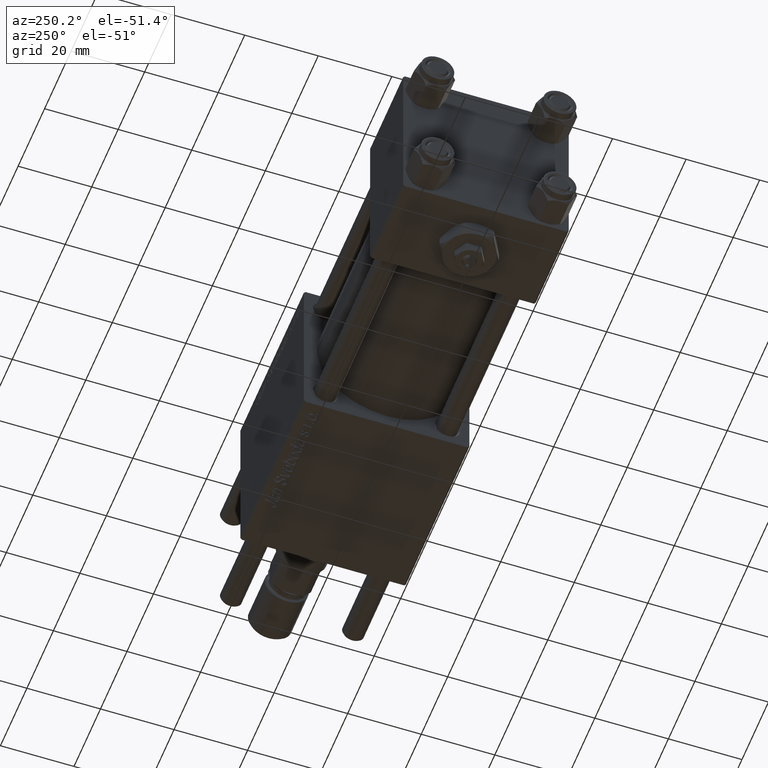
[diagram: clean part render]
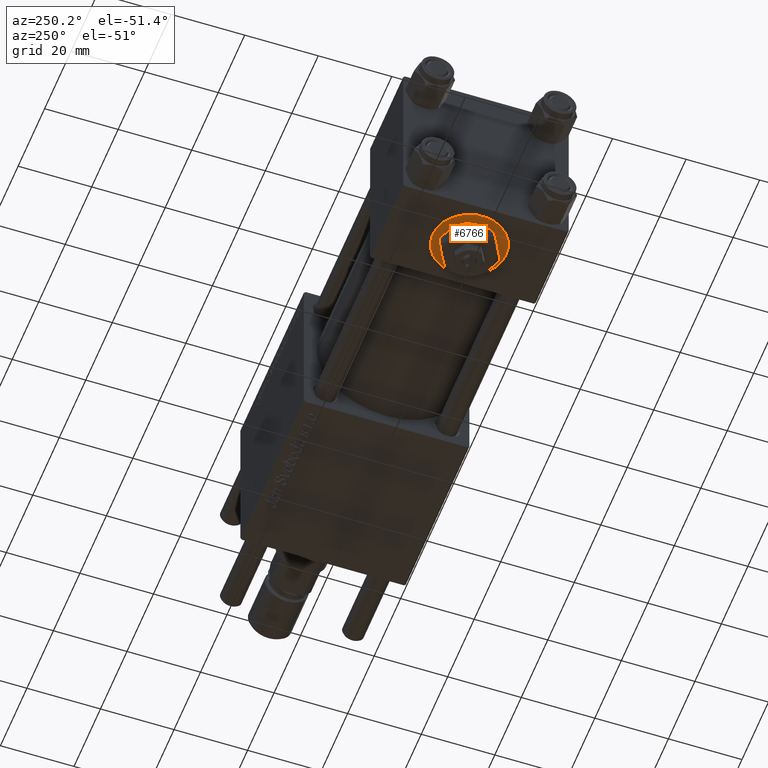
[diagram: same view with one face highlighted and labeled with its STEP entity id]
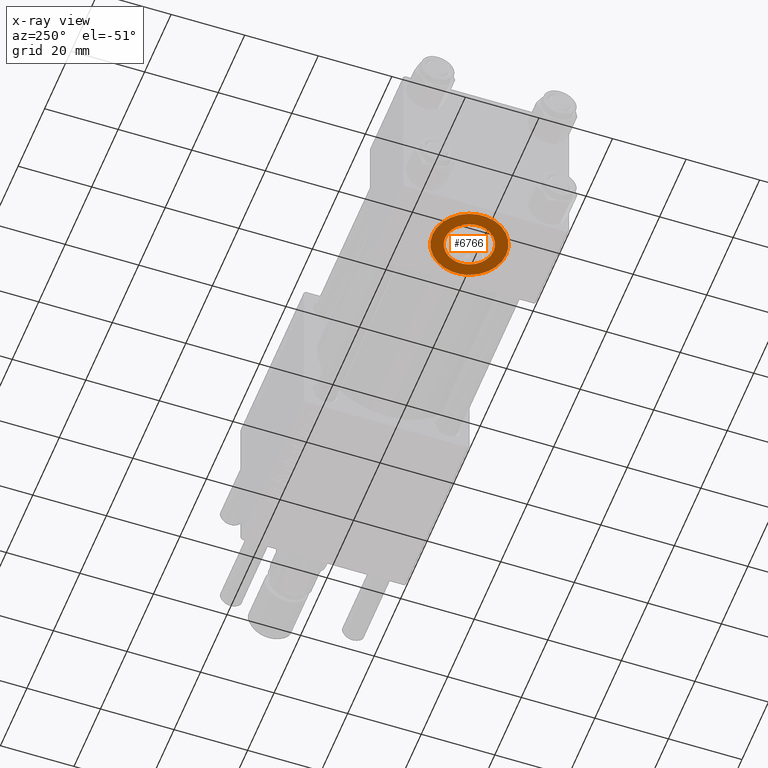
[diagram: x-ray of the same camera — body ghosted, the highlighted face saturated]
A machine part, auxiliary view. The second image highlights one B-rep face of the part: STEP entity #6766.
The next image is the same camera in x-ray: the body ghosted, the highlighted face saturated — about 0% of this face is hidden behind the body in this view.
In plain terms, the highlighted planar face has unit normal (0, -0, -1).
Its self-contained STEP definition (entity closure, byte-faithful):
#1667 = CARTESIAN_POINT ( 'NONE',  ( 12.50000000000000178, 6.580000000000003624, -22.30000000000000071 ) ) ;
#2521 = EDGE_CURVE ( 'NONE', #42478, #8849, #7633, .T. ) ;
#4433 = ORIENTED_EDGE ( 'NONE', *, *, #2521, .F. ) ;
#4780 = CARTESIAN_POINT ( 'NONE',  ( 12.50000000000000178, 3.600755186478915246E-15, -22.30000000000000071 ) ) ;
#4828 = EDGE_LOOP ( 'NONE', ( #4433, #51447 ) ) ;
#4853 = AXIS2_PLACEMENT_3D ( 'NONE', #53973, #12824, #13119 ) ;
#5380 = DIRECTION ( 'NONE',  ( 0.000000000000000000, 1.000000000000000000, 0.000000000000000000 ) ) ;
#6766 = ADVANCED_FACE ( 'NONE', ( #24138, #37277 ), #45916, .T. ) ;
#7630 = AXIS2_PLACEMENT_3D ( 'NONE', #28616, #37565, #42312 ) ;
#7633 = CIRCLE ( 'NONE', #36228, 6.580000000000000071 ) ;
#8849 = VERTEX_POINT ( 'NONE', #50880 ) ;
#11637 = ORIENTED_EDGE ( 'NONE', *, *, #39001, .T. ) ;
#12306 = CARTESIAN_POINT ( 'NONE',  ( 12.50000000000000178, 3.600755186478916035E-15, -22.30000000000000071 ) ) ;
#12824 = DIRECTION ( 'NONE',  ( 0.000000000000000000, -1.734723475976806848E-16, -1.000000000000000000 ) ) ;
#13119 = DIRECTION ( 'NONE',  ( 0.000000000000000000, 1.000000000000000000, 0.000000000000000000 ) ) ;
#14842 = EDGE_LOOP ( 'NONE', ( #34486, #11637 ) ) ;
#22578 = AXIS2_PLACEMENT_3D ( 'NONE', #4780, #22987, #5380 ) ;
#22663 = CIRCLE ( 'NONE', #56004, 6.580000000000000071 ) ;
#22987 = DIRECTION ( 'NONE',  ( 0.000000000000000000, -1.734723475976806848E-16, -1.000000000000000000 ) ) ;
#24138 = FACE_BOUND ( 'NONE', #4828, .T. ) ;
#24562 = VERTEX_POINT ( 'NONE', #43210 ) ;
#28616 = CARTESIAN_POINT ( 'NONE',  ( 12.50000000000000178, 3.600755186478915246E-15, -22.30000000000000071 ) ) ;
#30490 = DIRECTION ( 'NONE',  ( 0.000000000000000000, 1.000000000000000000, 0.000000000000000000 ) ) ;
#34130 = CARTESIAN_POINT ( 'NONE',  ( 12.50000000000000178, 3.600755186478916035E-15, -22.30000000000000071 ) ) ;
#34486 = ORIENTED_EDGE ( 'NONE', *, *, #54030, .T. ) ;
#35260 = DIRECTION ( 'NONE',  ( 0.000000000000000000, -1.734723475976806848E-16, -1.000000000000000000 ) ) ;
#35897 = CIRCLE ( 'NONE', #22578, 10.00000000000000178 ) ;
#36228 = AXIS2_PLACEMENT_3D ( 'NONE', #34130, #52311, #52896 ) ;
#37277 = FACE_OUTER_BOUND ( 'NONE', #14842, .T. ) ;
#37565 = DIRECTION ( 'NONE',  ( 0.000000000000000000, -1.734723475976806848E-16, -1.000000000000000000 ) ) ;
#39001 = EDGE_CURVE ( 'NONE', #48486, #24562, #35897, .T. ) ;
#42052 = EDGE_CURVE ( 'NONE', #8849, #42478, #22663, .T. ) ;
#42312 = DIRECTION ( 'NONE',  ( 0.000000000000000000, 1.000000000000000000, -1.734723475976806848E-16 ) ) ;
#42478 = VERTEX_POINT ( 'NONE', #1667 ) ;
#43210 = CARTESIAN_POINT ( 'NONE',  ( 12.50000000000000178, 10.00000000000000533, -22.30000000000000071 ) ) ;
#45916 = PLANE ( 'NONE',  #7630 ) ;
#48486 = VERTEX_POINT ( 'NONE', #58804 ) ;
#49583 = CIRCLE ( 'NONE', #4853, 10.00000000000000178 ) ;
#50880 = CARTESIAN_POINT ( 'NONE',  ( 12.50000000000000178, -6.579999999999997407, -22.30000000000000071 ) ) ;
#51447 = ORIENTED_EDGE ( 'NONE', *, *, #42052, .F. ) ;
#52311 = DIRECTION ( 'NONE',  ( 0.000000000000000000, -1.734723475976806848E-16, -1.000000000000000000 ) ) ;
#52896 = DIRECTION ( 'NONE',  ( 0.000000000000000000, 1.000000000000000000, 0.000000000000000000 ) ) ;
#53973 = CARTESIAN_POINT ( 'NONE',  ( 12.50000000000000178, 3.600755186478915246E-15, -22.30000000000000071 ) ) ;
#54030 = EDGE_CURVE ( 'NONE', #24562, #48486, #49583, .T. ) ;
#56004 = AXIS2_PLACEMENT_3D ( 'NONE', #12306, #35260, #30490 ) ;
#58804 = CARTESIAN_POINT ( 'NONE',  ( 12.50000000000000355, -9.999999999999998224, -22.30000000000000071 ) ) ;